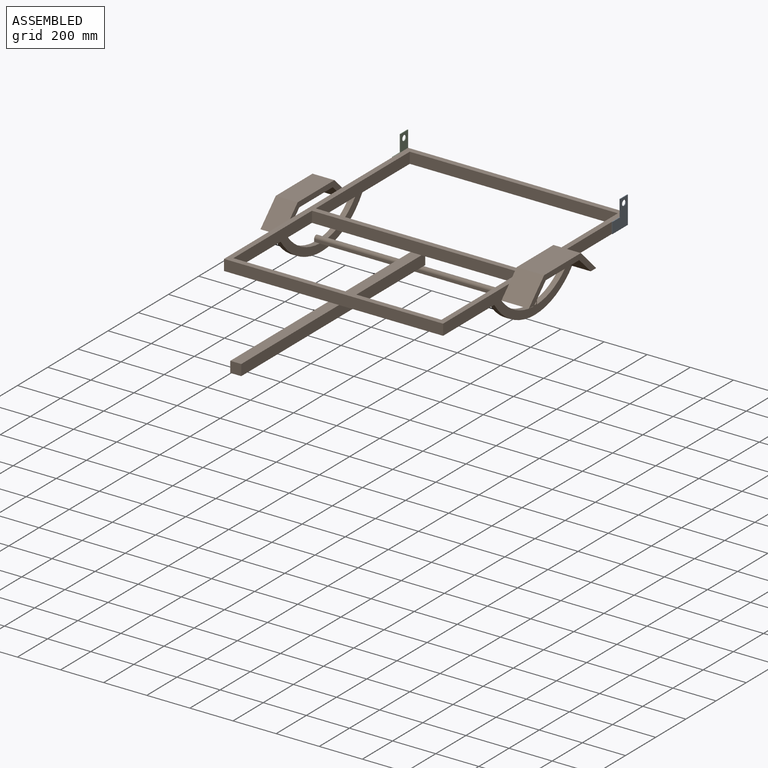
[diagram: assembled view]
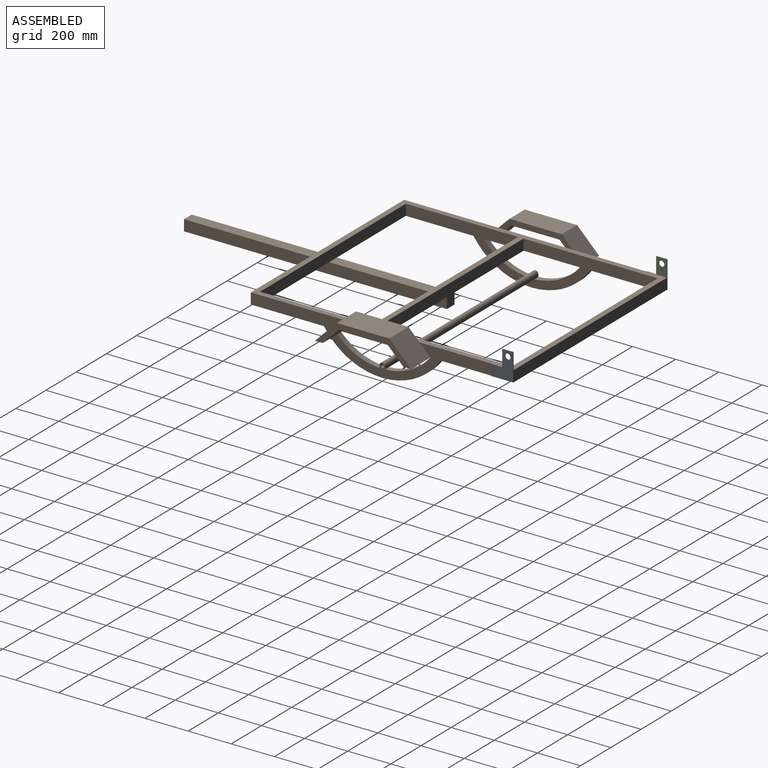
[diagram: assembled view, second angle]
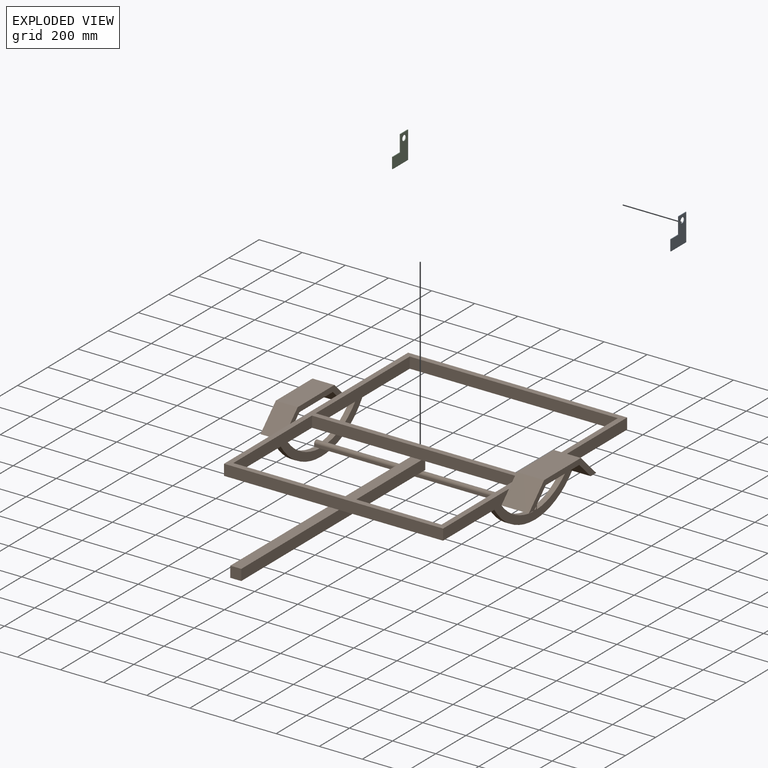
[diagram: exploded view]
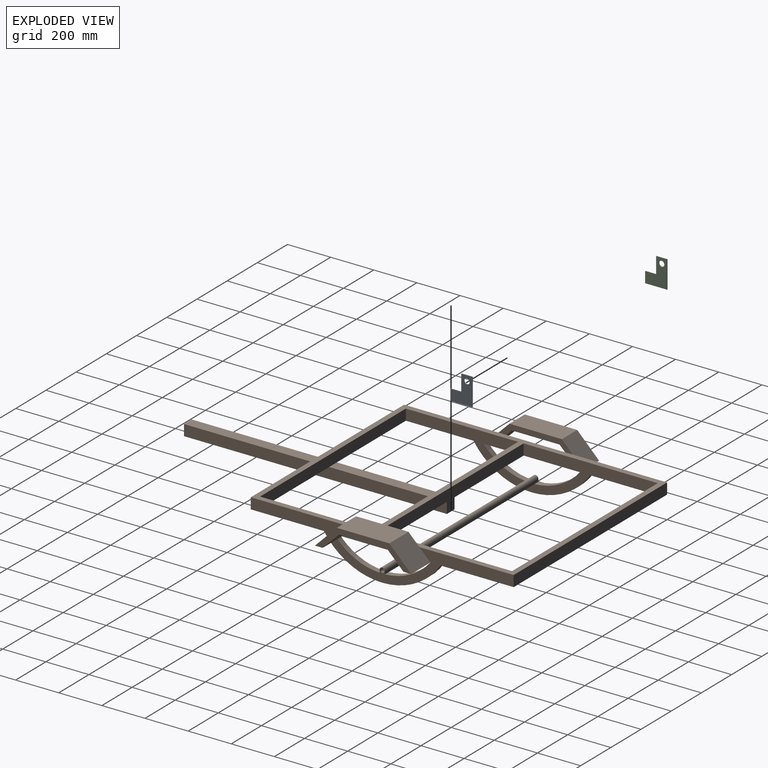
[diagram: exploded view, second angle]
ASSEMBLY  parts=3 mates=2
PART A: 9 faces, bbox 3.2x101.6x127 mm
  f0: plane 76.2x3.18mm, normal (0,-1,0), area 241.9mm2, adj f1,f5,f6,f7
  f1: plane 50.8x3.18mm, normal (0,0,1), area 161.3mm2, adj f0,f2,f6,f7
  f2: plane 50.8x3.18mm, normal (0,-1,0), area 161.3mm2, adj f1,f3,f6,f7
  f3: plane 101.6x3.18mm, normal (0,0,-1), area 322.6mm2, adj f2,f4,f6,f7
  f4: plane 127x3.18mm, normal (0,1,0), area 403.2mm2, adj f3,f5,f6,f7
  f5: plane 50.8x3.18mm, normal (0,0,1), area 161.3mm2, adj f0,f4,f6,f7
  f6: plane 127x101.6mm, normal (1,0,0), area 8525.5mm2, adj f0,f1,f2,f3,f4,f5,f8
  f7: plane 127x101.6mm, normal (-1,0,0), area 8525.5mm2, adj f0,f1,f2,f3,f4,f5,f8
  f8: cylinder r=12.7mm len=25.4mm, axis (-1,0,0), area 253.4mm2, adj f6,f7
PART B: 51 faces, bbox 1244.6x1866.9x245.9 mm
  f0: plane 374.47x50.8mm, normal (1,0,0), area 16442.2mm2, adj f8,f16,f44,f46
  f1: plane 1219.2x195.14mm, normal (1,0,0), area 64039.8mm2, adj f4,f9,f10,f11,f16,f17,f26,f27
  f2: plane 1219.2x195.14mm, normal (-1,0,0), area 64039.8mm2, adj f5,f7,f9,f10,f11,f16,f28,f29
  f3: plane 374.47x50.8mm, normal (-1,0,0), area 16442.2mm2, adj f6,f16,f37,f39
  f4: cylinder r=287.48mm len=210.45mm, axis (1,0,0), area 6166.5mm2, adj f1,f8,f14,f34
  f5: cylinder r=287.48mm len=210.45mm, axis (-1,0,0), area 6166.5mm2, adj f2,f6,f12,f34
  f6: plane 584.2x446.31mm, normal (0,0,-1), area 30248.2mm2, adj f3,f5,f12,f18,f19,f22,f28,f36
  f7: plane 482.6x339.13mm, normal (0,0,-1), area 20226.7mm2, adj f2,f10,f12,f15,f22,f29
  f8: plane 609.6x446.31mm, normal (0,0,-1), area 32073mm2, adj f0,f4,f14,f18,f19,f23,f26,f44
  f9: plane 1016x339.13mm, normal (0,0,-1), area 41743.8mm2, adj f1,f2,f11,f12,f13,f14,f27,f29
  f10: plane 1016x50.8mm, normal (0,-1,0), area 51612.8mm2, adj f1,f2,f7,f16,f17,f21
  f11: plane 1016x50.8mm, normal (0,1,0), area 51612.8mm2, adj f1,f2,f9,f16
  f12: plane 1168.4x195.14mm, normal (1,0,0), area 79972mm2, adj f5,f6,f7,f9,f13,f15,f16,f18
  f13: plane 965.2x50.8mm, normal (0,-1,0), area 49032.2mm2, adj f9,f12,f14,f16
  f14: plane 1168.4x195.14mm, normal (-1,0,0), area 79972mm2, adj f4,f8,f9,f13,f15,f16,f17,f18
  f15: plane 965.2x50.8mm, normal (0,1,0), area 49032.2mm2, adj f7,f12,f14,f16,f17,f20
  f16: plane 1219.2x1016mm, normal (0,0,1), area 135483.6mm2, adj f0,f1,f2,f3,f10,f11,f12,f13
  f17: plane 482.6x339.13mm, normal (0,0,-1), area 20226.7mm2, adj f1,f10,f14,f15,f23,f27
  f18: plane 965.2x50.8mm, normal (0,-1,0), area 49032.2mm2, adj f6,f8,f12,f14,f16,f20
  f19: plane 965.2x101.6mm, normal (0,1,0), area 51612.8mm2, adj f6,f8,f12,f14,f16,f22,f23,f25
  f20: plane 520.7x50.8mm, normal (0,0,1), area 26451.6mm2, adj f15,f18,f22,f23
  f21: plane 647.7x50.8mm, normal (0,0,1), area 32903.2mm2, adj f10,f22,f23,f24
  f22: plane 1219.2x50.8mm, normal (-1,0,0), area 61935.4mm2, adj f6,f7,f19,f20,f21,f24,f25
  f23: plane 1219.2x50.8mm, normal (1,0,0), area 61935.4mm2, adj f8,f17,f19,f20,f21,f24,f25
  f24: plane 50.8x50.8mm, normal (0,-1,0), area 2580.6mm2, adj f21,f22,f23,f25
  f25: plane 1219.2x50.8mm, normal (0,0,-1), area 61935.4mm2, adj f19,f22,f23,f24
  f26: cylinder r=287.48mm len=210.45mm, axis (1,0,0), area 6166.5mm2, adj f1,f8,f14,f31
  f27: cylinder r=325.58mm len=540.94mm, axis (1,0,0), area 16215.9mm2, adj f1,f9,f14,f17
  f28: cylinder r=287.48mm len=210.45mm, axis (-1,0,0), area 6166.5mm2, adj f2,f6,f12,f31
  f29: cylinder r=325.58mm len=540.94mm, axis (-1,0,0), area 16215.9mm2, adj f2,f7,f9,f12
  f30: cylinder r=287.48mm len=965.2mm, axis (1,0,0), area 24524.1mm2, adj f12,f14,f31,f34
  f31: plane 1016x12.42mm, normal (0,1,0), area 12618mm2, adj f1,f2,f26,f28,f30,f32
  f32: cylinder r=12.7mm len=1016mm, axis (1,0,0), area 40536.6mm2, adj f1,f2,f31,f34
  f33: cylinder r=9.53mm len=1016mm, axis (1,0,0), area 60804.9mm2, adj f1,f2
  f34: plane 1016x12.42mm, normal (0,-1,0), area 12618mm2, adj f1,f2,f4,f5,f30,f32
  f35: plane 243.11x101.6mm, normal (0,0,1), area 24699.7mm2, adj f36,f40,f41,f42
  f36: plane 101.6x101.6mm, normal (0,0.71,0.71), area 14598.3mm2, adj f2,f6,f35,f41,f42
  f37: plane 101.6x76.2mm, normal (0,-0.71,-0.71), area 10948.7mm2, adj f3,f6,f38,f41,f42
  f38: plane 222.07x101.6mm, normal (0,0,-1), area 22561.8mm2, adj f37,f39,f41,f42
  f39: plane 101.6x76.2mm, normal (0,0.71,-0.71), area 10948.7mm2, adj f3,f6,f38,f41,f42
  f40: plane 101.6x101.6mm, normal (0,-0.71,0.71), area 14598.3mm2, adj f2,f6,f35,f41,f42
  f41: plane 446.31x101.6mm, normal (-1,0,0), area 12294.4mm2, adj f6,f35,f36,f37,f38,f39,f40
  f42: plane 344.71x50.8mm, normal (1,0,0), area 8644.9mm2, adj f16,f35,f36,f37,f38,f39,f40
  f43: plane 344.71x50.8mm, normal (-1,0,0), area 8644.9mm2, adj f16,f44,f45,f46,f47,f48,f49
  f44: plane 127x76.2mm, normal (0,0.71,-0.71), area 13685.9mm2, adj f0,f8,f43,f45,f50
  f45: plane 222.07x127mm, normal (0,0,-1), area 28202.3mm2, adj f43,f44,f46,f50
  f46: plane 127x76.2mm, normal (0,-0.71,-0.71), area 13685.9mm2, adj f0,f8,f43,f45,f50
  f47: plane 127x101.6mm, normal (0,0.71,0.71), area 18247.9mm2, adj f1,f8,f43,f48,f50
  f48: plane 243.11x127mm, normal (0,0,1), area 30874.6mm2, adj f43,f47,f49,f50
  f49: plane 127x101.6mm, normal (0,-0.71,0.71), area 18247.9mm2, adj f1,f8,f43,f48,f50
  f50: plane 446.31x101.6mm, normal (1,0,0), area 12294.4mm2, adj f8,f44,f45,f46,f47,f48,f49
PART C: 9 faces, bbox 3.2x101.6x127 mm
  f0: plane 127x3.18mm, normal (0,1,0), area 403.2mm2, adj f1,f5,f6,f7
  f1: plane 101.6x3.18mm, normal (0,0,-1), area 322.6mm2, adj f0,f2,f6,f7
  f2: plane 50.8x3.18mm, normal (0,-1,0), area 161.3mm2, adj f1,f3,f6,f7
  f3: plane 50.8x3.18mm, normal (0,0,1), area 161.3mm2, adj f2,f4,f6,f7
  f4: plane 76.2x3.18mm, normal (0,-1,0), area 241.9mm2, adj f3,f5,f6,f7
  f5: plane 50.8x3.18mm, normal (0,0,1), area 161.3mm2, adj f0,f4,f6,f7
  f6: plane 127x101.6mm, normal (-1,0,0), area 8525.5mm2, adj f0,f1,f2,f3,f4,f5,f8
  f7: plane 127x101.6mm, normal (1,0,0), area 8525.5mm2, adj f0,f1,f2,f3,f4,f5,f8
  f8: cylinder r=12.7mm len=25.4mm, axis (-1,0,0), area 253.4mm2, adj f6,f7
PLACE A t=(-363.92,80.95,-15)mm
PLACE B t=(-363.92,80.95,-15.26)mm fixed
PLACE C t=(-363.92,80.95,-15.26)mm
MATE planar B.f0 <-> A.f7  axis (1,0,0) through (144.08,80.95,-16.59)mm
MATE planar C.f7 <-> B.f2  axis (1,0,0) through (-871.92,639.75,10.14)mm
